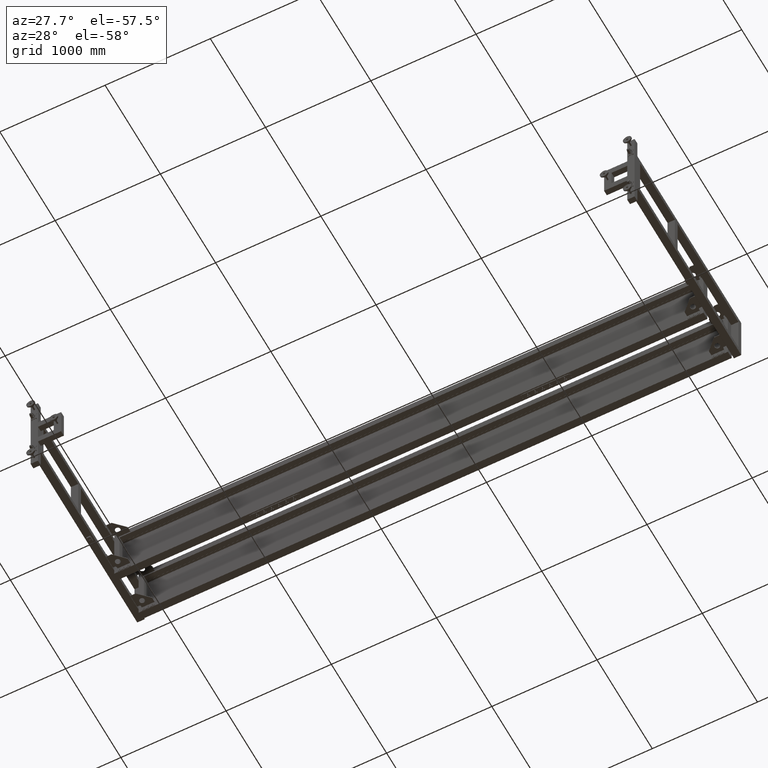
[diagram: clean part render]
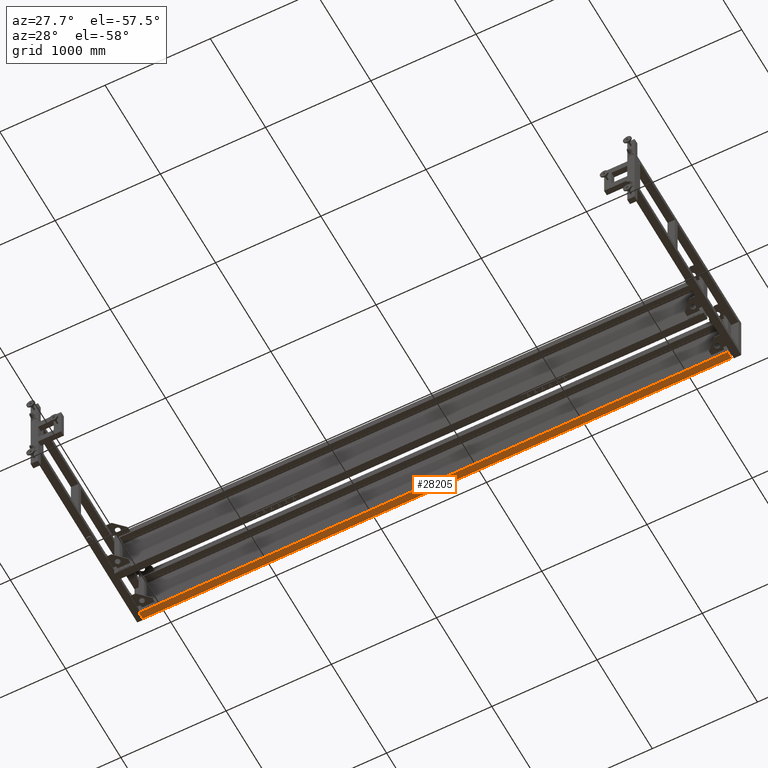
[diagram: same view with one face highlighted and labeled with its STEP entity id]
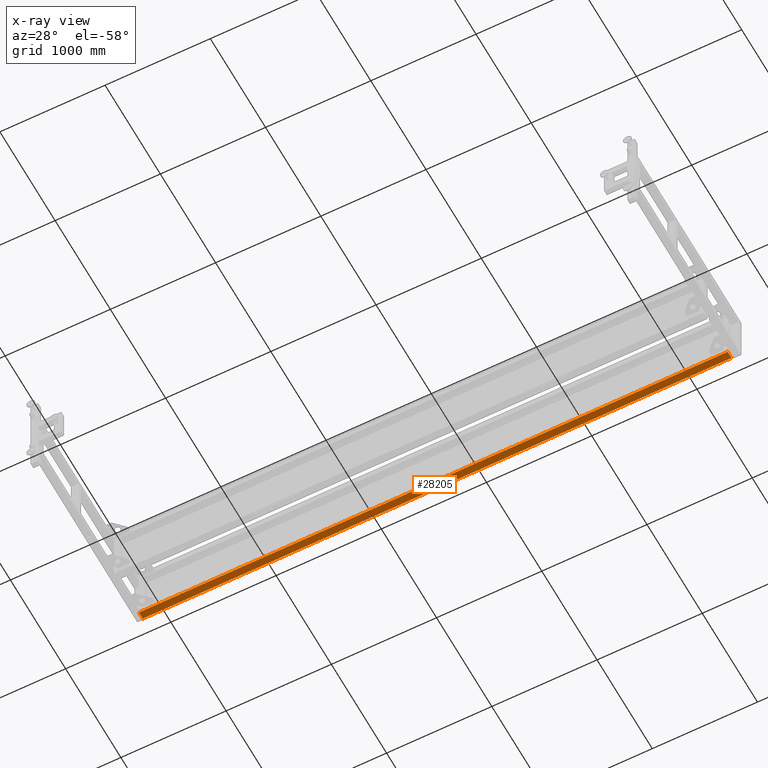
[diagram: x-ray of the same camera — body ghosted, the highlighted face saturated]
A machine part, auxiliary view. The second image highlights one B-rep face of the part: STEP entity #28205.
The next image is the same camera in x-ray: the body ghosted, the highlighted face saturated — about 0% of this face is hidden behind the body in this view.
In plain terms, the highlighted planar face has unit normal (-0, -0, 1).
Its self-contained STEP definition (entity closure, byte-faithful):
#3932 = EDGE_LOOP ( 'NONE', ( #53418, #48433, #87842, #69395 ) ) ;
#4763 = LINE ( 'NONE', #5932, #60059 ) ;
#5932 = CARTESIAN_POINT ( 'NONE',  ( 1133.827512562815173, 996.9410804020149044, -299.9999999999988631 ) ) ;
#8249 = VECTOR ( 'NONE', #15324, 1000.000000000000000 ) ;
#9008 = EDGE_CURVE ( 'NONE', #101860, #50077, #13551, .T. ) ;
#11154 = EDGE_CURVE ( 'NONE', #29765, #101860, #77082, .T. ) ;
#13551 = LINE ( 'NONE', #22674, #8249 ) ;
#15324 = DIRECTION ( 'NONE',  ( 1.000000000000000000, -1.365026013856678295E-16, 0.000000000000000000 ) ) ;
#22674 = CARTESIAN_POINT ( 'NONE',  ( 1133.827512562815173, 926.9410804020150181, -299.9999999999991473 ) ) ;
#25425 = VECTOR ( 'NONE', #114322, 1000.000000000000000 ) ;
#28205 = ADVANCED_FACE ( 'NONE', ( #101348 ), #119004, .F. ) ;
#29765 = VERTEX_POINT ( 'NONE', #86801 ) ;
#31387 = LINE ( 'NONE', #97017, #75333 ) ;
#32009 = DIRECTION ( 'NONE',  ( 3.178231158697545349E-16, -1.000000000000000000, -3.603491776919587486E-15 ) ) ;
#36956 = DIRECTION ( 'NONE',  ( -4.918860016213862035E-31, -3.603491776919587486E-15, 1.000000000000000000 ) ) ;
#45127 = CARTESIAN_POINT ( 'NONE',  ( 4329.827512562815173, 996.9410804020149044, -299.9999999999988631 ) ) ;
#48433 = ORIENTED_EDGE ( 'NONE', *, *, #67440, .T. ) ;
#49821 = CARTESIAN_POINT ( 'NONE',  ( -1266.172487437185964, 926.9410804020142223, -299.9999999999991473 ) ) ;
#50077 = VERTEX_POINT ( 'NONE', #79298 ) ;
#50385 = DIRECTION ( 'NONE',  ( 1.000000000000000000, -1.365026013856678295E-16, 0.000000000000000000 ) ) ;
#53418 = ORIENTED_EDGE ( 'NONE', *, *, #94217, .T. ) ;
#55109 = DIRECTION ( 'NONE',  ( 1.365026013856678295E-16, 1.000000000000000000, 3.603491776919587486E-15 ) ) ;
#55503 = VERTEX_POINT ( 'NONE', #45127 ) ;
#60059 = VECTOR ( 'NONE', #50385, 1000.000000000000000 ) ;
#64936 = AXIS2_PLACEMENT_3D ( 'NONE', #111700, #36956, #55109 ) ;
#67440 = EDGE_CURVE ( 'NONE', #55503, #50077, #31387, .T. ) ;
#69395 = ORIENTED_EDGE ( 'NONE', *, *, #11154, .F. ) ;
#75333 = VECTOR ( 'NONE', #32009, 1000.000000000000000 ) ;
#77082 = LINE ( 'NONE', #49821, #25425 ) ;
#79298 = CARTESIAN_POINT ( 'NONE',  ( 4329.827512562815173, 926.9410804020150181, -299.9999999999991473 ) ) ;
#86801 = CARTESIAN_POINT ( 'NONE',  ( -1266.172487437185964, 996.9410804020139949, -299.9999999999988631 ) ) ;
#87842 = ORIENTED_EDGE ( 'NONE', *, *, #9008, .F. ) ;
#94217 = EDGE_CURVE ( 'NONE', #29765, #55503, #4763, .T. ) ;
#97017 = CARTESIAN_POINT ( 'NONE',  ( 4329.827512562815173, 926.9410804020150181, -299.9999999999991473 ) ) ;
#101348 = FACE_OUTER_BOUND ( 'NONE', #3932, .T. ) ;
#101860 = VERTEX_POINT ( 'NONE', #109574 ) ;
#109574 = CARTESIAN_POINT ( 'NONE',  ( -1266.172487437185964, 926.9410804020142223, -299.9999999999991473 ) ) ;
#111700 = CARTESIAN_POINT ( 'NONE',  ( 1133.827512562815173, 926.9410804020150181, -299.9999999999991473 ) ) ;
#114322 = DIRECTION ( 'NONE',  ( 0.000000000000000000, -1.000000000000000000, -3.603491776919587486E-15 ) ) ;
#119004 = PLANE ( 'NONE',  #64936 ) ;